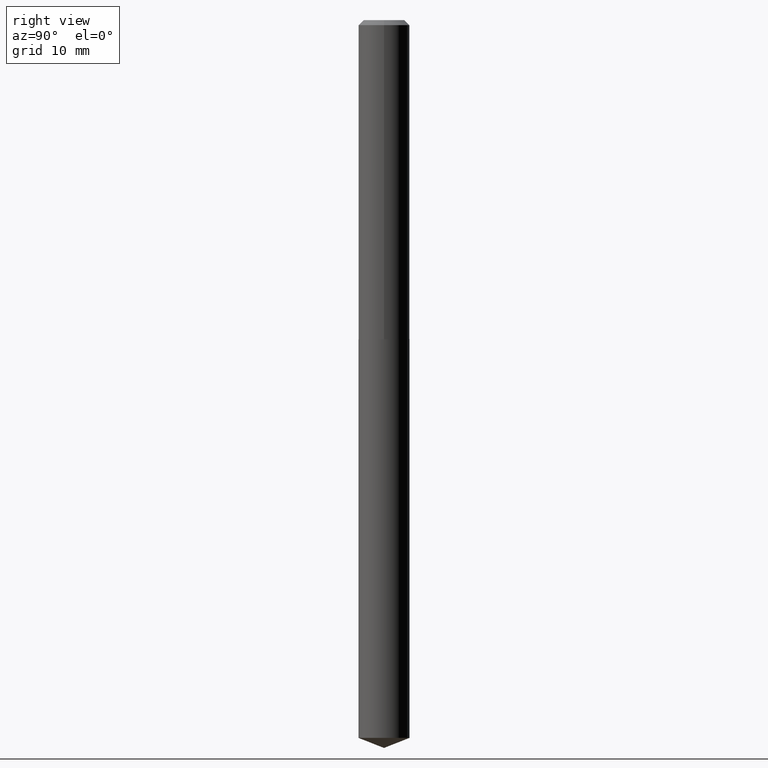
[diagram: clean part render]
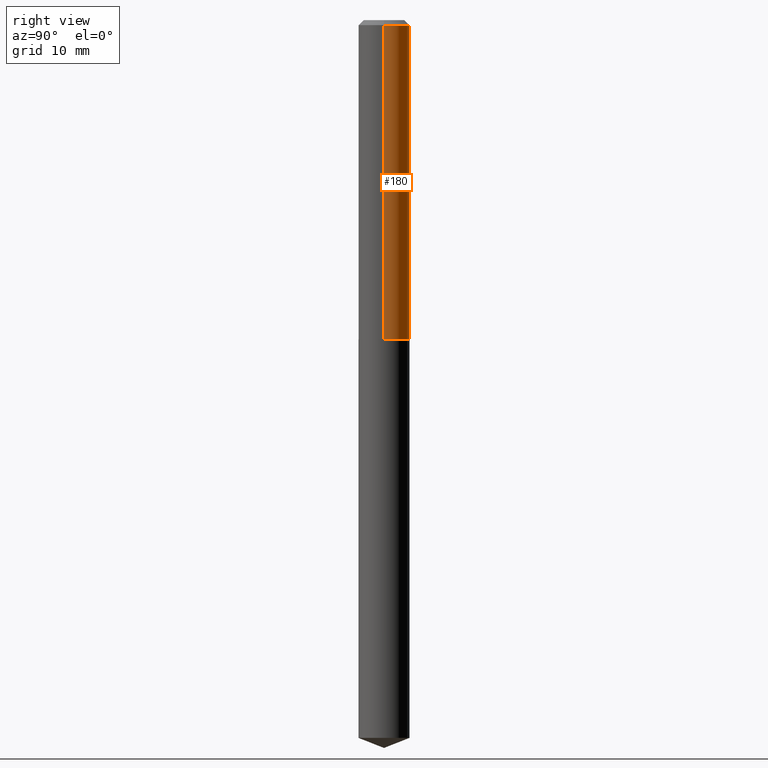
[diagram: same view with one face highlighted and labeled with its STEP entity id]
A machine part, right view. The second image highlights one B-rep face of the part: STEP entity #180.
In plain terms, the highlighted cylindrical surface (edge-blend (fillet) strip) has radius 4.0005 mm, axis along (-0, 0, 1).
Its self-contained STEP definition (entity closure, byte-faithful):
#4 = DIRECTION ( 'NONE',  ( -2.445468806185136597E-29, 3.491481338843145583E-15, 1.000000000000000000 ) ) ;
#22 = ORIENTED_EDGE ( 'NONE', *, *, #106, .T. ) ;
#23 = CARTESIAN_POINT ( 'NONE',  ( -0.1575000000000002232, -5.752130466021147867E-15, -1.967999999999999305 ) ) ;
#50 = CARTESIAN_POINT ( 'NONE',  ( -0.1575000000000000011, -2.371067224518919682E-15, -0.03125000000000022898 ) ) ;
#59 = VERTEX_POINT ( 'NONE', #291 ) ;
#61 = DIRECTION ( 'NONE',  ( 1.000000000000000000, -6.982962677686271444E-15, 0.000000000000000000 ) ) ;
#70 = FACE_OUTER_BOUND ( 'NONE', #108, .T. ) ;
#94 = AXIS2_PLACEMENT_3D ( 'NONE', #347, #201, #110 ) ;
#100 = CARTESIAN_POINT ( 'NONE',  ( 0.1575000000000000844, -1.099816621735587677E-15, 7.679978421878603638E-30 ) ) ;
#106 = EDGE_CURVE ( 'NONE', #341, #202, #158, .T. ) ;
#108 = EDGE_LOOP ( 'NONE', ( #22, #258, #131, #317 ) ) ;
#110 = DIRECTION ( 'NONE',  ( 1.000000000000000000, -6.982962677686265922E-15, 0.000000000000000000 ) ) ;
#131 = ORIENTED_EDGE ( 'NONE', *, *, #387, .F. ) ;
#146 = VECTOR ( 'NONE', #354, 39.37007874015748143 ) ;
#150 = EDGE_CURVE ( 'NONE', #202, #288, #241, .T. ) ;
#151 = CYLINDRICAL_SURFACE ( 'NONE', #270, 0.1575000000000000844 ) ;
#158 = CIRCLE ( 'NONE', #266, 0.1575000000000002232 ) ;
#171 = LINE ( 'NONE', #100, #357 ) ;
#180 = ADVANCED_FACE ( 'NONE', ( #70 ), #151, .T. ) ;
#187 = CARTESIAN_POINT ( 'NONE',  ( 0.000000000000000000, 0.000000000000000000, 0.000000000000000000 ) ) ;
#191 = CIRCLE ( 'NONE', #94, 0.1575000000000000011 ) ;
#201 = DIRECTION ( 'NONE',  ( -2.445468806185136597E-29, 3.491481338843145583E-15, 1.000000000000000000 ) ) ;
#202 = VERTEX_POINT ( 'NONE', #23 ) ;
#219 = DIRECTION ( 'NONE',  ( -2.445468806185136877E-29, 3.491481338843145188E-15, 1.000000000000000000 ) ) ;
#241 = LINE ( 'NONE', #359, #146 ) ;
#255 = EDGE_CURVE ( 'NONE', #341, #59, #171, .T. ) ;
#258 = ORIENTED_EDGE ( 'NONE', *, *, #150, .T. ) ;
#266 = AXIS2_PLACEMENT_3D ( 'NONE', #299, #4, #61 ) ;
#270 = AXIS2_PLACEMENT_3D ( 'NONE', #187, #273, #301 ) ;
#273 = DIRECTION ( 'NONE',  ( -2.445468806185136597E-29, 3.491481338843145583E-15, 1.000000000000000000 ) ) ;
#288 = VERTEX_POINT ( 'NONE', #50 ) ;
#291 = CARTESIAN_POINT ( 'NONE',  ( 0.1575000000000000011, -1.208925413574435989E-15, -0.03125000000000022898 ) ) ;
#299 = CARTESIAN_POINT ( 'NONE',  ( 4.812682610572347352E-29, -6.871235274843307837E-15, -1.967999999999999305 ) ) ;
#301 = DIRECTION ( 'NONE',  ( 1.000000000000000000, -6.982962677686267499E-15, 4.876176775795936353E-29 ) ) ;
#317 = ORIENTED_EDGE ( 'NONE', *, *, #255, .F. ) ;
#341 = VERTEX_POINT ( 'NONE', #368 ) ;
#347 = CARTESIAN_POINT ( 'NONE',  ( 7.642090019328607917E-31, -1.091087918388491006E-16, -0.03125000000000022898 ) ) ;
#354 = DIRECTION ( 'NONE',  ( -2.445468806185136877E-29, 3.491481338843145188E-15, 1.000000000000000000 ) ) ;
#357 = VECTOR ( 'NONE', #219, 39.37007874015748143 ) ;
#359 = CARTESIAN_POINT ( 'NONE',  ( -0.1575000000000000844, 1.119104808822158392E-15, -7.747322767151481189E-30 ) ) ;
#368 = CARTESIAN_POINT ( 'NONE',  ( 0.1575000000000002232, -7.971051896578897684E-15, -1.967999999999999305 ) ) ;
#387 = EDGE_CURVE ( 'NONE', #59, #288, #191, .T. ) ;